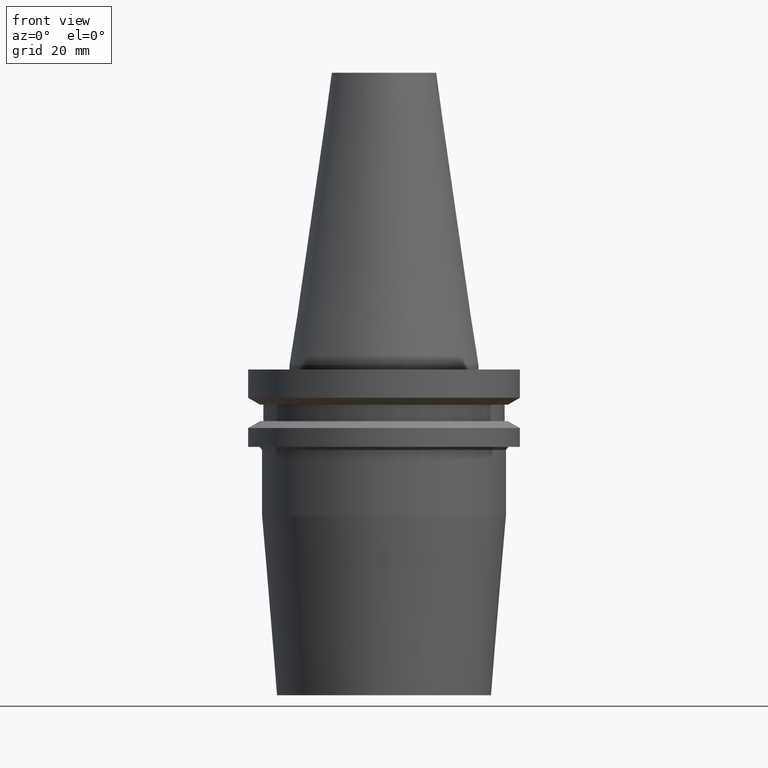
[diagram: clean part render]
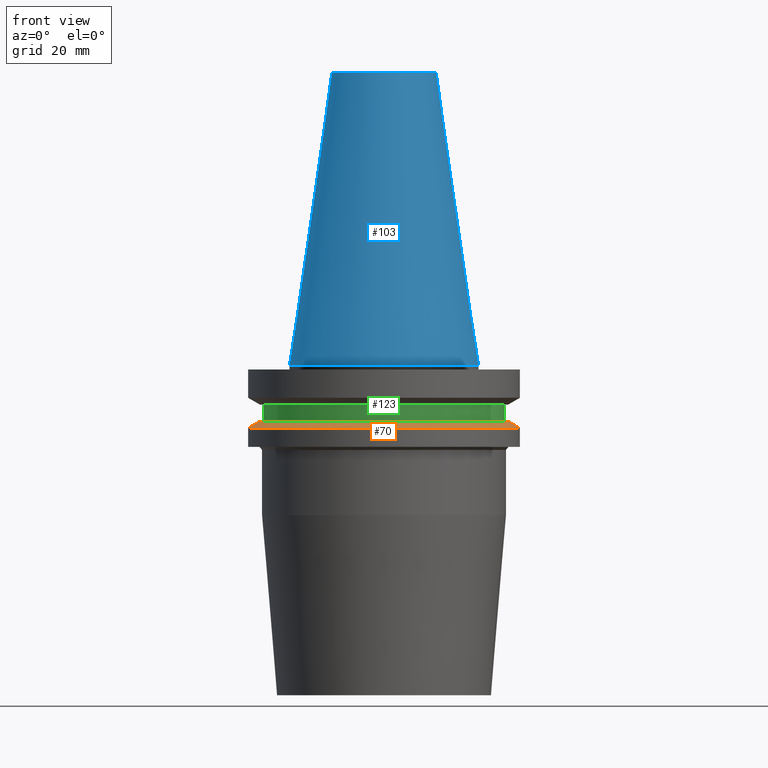
[diagram: same view with three faces highlighted in distinct colors, each labeled with its STEP entity id]
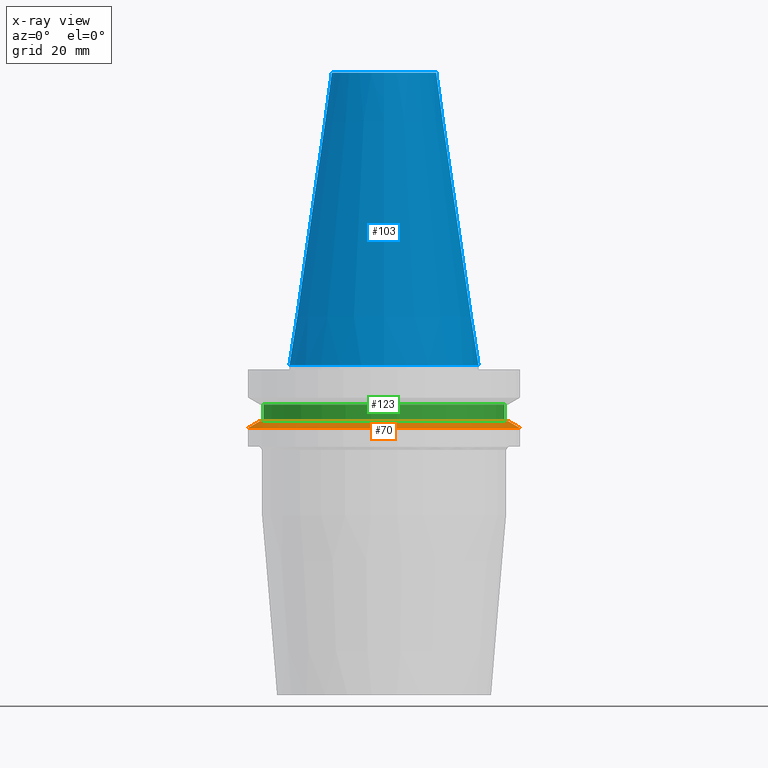
[diagram: x-ray of the same camera — body ghosted, the three highlighted faces saturated]
A machine part, front view with three faces highlighted in distinct colors.
The next image is the same camera in x-ray (body ghosted, the three faces saturated) — at least one of them is partly hidden behind the body in this view.
Their STEP definitions:

[orange] entity #70 — the highlighted conical surface has half-angle 60 deg.
#56=EDGE_CURVE('Unnamed[1]',#153,#153,#154,.T.);
#70=ADVANCED_FACE('Unnamed[1]',(#174,#175),#176,.T.);
#120=EDGE_CURVE('Unnamed[1]',#252,#252,#253,.T.);
#153=VERTEX_POINT('',#286);
#154=CIRCLE('',#287,28.9680375505324);
#174=FACE_BOUND('',#312,.T.);
#175=FACE_BOUND('',#313,.T.);
#176=CONICAL_SURFACE('',#314,30.3590187752662,1.0471975511966);
#252=VERTEX_POINT('',#409);
#253=CIRCLE('',#410,31.75);
#286=CARTESIAN_POINT('',(7.98469713044073E-016,28.9680375505324,-13.04));
#287=AXIS2_PLACEMENT_3D('',#442,#443,#444);
#312=EDGE_LOOP('',(#466));
#313=EDGE_LOOP('',(#467));
#314=AXIS2_PLACEMENT_3D('',#468,#469,#470);
#409=CARTESIAN_POINT('',(8.96819062676333E-016,31.75,-14.6461667690755));
#410=AXIS2_PLACEMENT_3D('',#552,#553,#554);
#442=CARTESIAN_POINT('',(7.98469713044073E-016,-1.8577383154557E-014,-13.04));
#443=DIRECTION('',(6.12323399573677E-017,-1.22696610407827E-016,-1.0));
#444=DIRECTION('',(2.68584782934724E-033,1.0,-1.22696610407827E-016));
#466=ORIENTED_EDGE('',*,*,#120,.F.);
#467=ORIENTED_EDGE('',*,*,#56,.T.);
#468=CARTESIAN_POINT('',(8.47644387860203E-016,-1.86759187637146E-014,-13.8430833845377));
#469=DIRECTION('',(6.12323399573677E-017,-1.22696610407864E-016,-1.0));
#470=DIRECTION('',(2.68584782933801E-033,1.0,-1.22696610407864E-016));
#552=CARTESIAN_POINT('',(8.96819062676333E-016,-1.87744543728722E-014,-14.6461667690755));
#553=DIRECTION('',(6.12323399573677E-017,-1.22696610407796E-016,-1.0));
#554=DIRECTION('',(2.68584782933523E-033,1.0,-1.22696610407796E-016));

[blue] entity #103 — the highlighted conical surface has half-angle 8.297 deg.
#100=EDGE_CURVE('Unnamed[1]',#220,#220,#221,.T.);
#103=ADVANCED_FACE('Unnamed[1]',(#224,#225),#226,.T.);
#112=EDGE_CURVE('Unnamed[1]',#239,#239,#240,.T.);
#220=VERTEX_POINT('',#369);
#221=CIRCLE('',#370,22.225);
#224=FACE_BOUND('',#374,.T.);
#225=FACE_BOUND('',#375,.T.);
#226=CONICAL_SURFACE('',#376,17.2484375007384,0.144812498217751);
#239=VERTEX_POINT('',#393);
#240=CIRCLE('',#394,12.2718750014768);
#369=CARTESIAN_POINT('',(-2.7394427528964E-031,22.225,2.72177751110499E-015));
#370=AXIS2_PLACEMENT_3D('',#516,#517,#518);
#374=EDGE_LOOP('',(#520));
#375=EDGE_LOOP('',(#521));
#376=AXIS2_PLACEMENT_3D('',#522,#523,#524);
#393=CARTESIAN_POINT('',(-4.17910720209034E-015,12.2718750014768,68.25));
#394=AXIS2_PLACEMENT_3D('',#537,#538,#539);
#516=CARTESIAN_POINT('',(2.09262850008981E-046,-1.69774193548387E-014,-2.07913422706855E-030));
#517=DIRECTION('',(6.12323399573676E-017,-1.22696610407854E-016,-1.0));
#518=DIRECTION('',(2.6858478293441E-033,1.0,-1.22696610407854E-016));
#520=ORIENTED_EDGE('',*,*,#100,.F.);
#521=ORIENTED_EDGE('',*,*,#112,.T.);
#522=CARTESIAN_POINT('',(-2.08955360104517E-015,-1.2790397524671E-014,34.125));
#523=DIRECTION('',(6.12323399573676E-017,-1.22696610407808E-016,-1.0));
#524=DIRECTION('',(2.68584782933486E-033,1.0,-1.22696610407808E-016));
#537=CARTESIAN_POINT('',(-4.17910720209034E-015,-8.60337569450326E-015,68.25));
#538=DIRECTION('',(6.12323399573677E-017,-1.22696610407856E-016,-1.0));
#539=DIRECTION('',(2.68584782934005E-033,1.0,-1.22696610407856E-016));

[green] entity #123 — the highlighted cylindrical surface (bore or boss wall) has radius 28.18 mm, axis along (0, -0, -1).
#72=EDGE_CURVE('Unnamed[1]',#178,#178,#179,.T.);
#105=EDGE_CURVE('Unnamed[1]',#228,#228,#229,.T.);
#123=ADVANCED_FACE('Unnamed[1]',(#256,#257),#258,.T.);
#178=VERTEX_POINT('',#317);
#179=CIRCLE('',#318,28.18);
#228=VERTEX_POINT('',#379);
#229=CIRCLE('',#380,28.18);
#256=FACE_BOUND('',#414,.T.);
#257=FACE_BOUND('',#415,.T.);
#258=CYLINDRICAL_SURFACE('',#416,28.18);
#317=CARTESIAN_POINT('',(5.63337527607784E-016,28.18,-9.20000000000003));
#318=AXIS2_PLACEMENT_3D('',#471,#472,#473);
#379=CARTESIAN_POINT('',(7.98469713044073E-016,28.18,-13.04));
#380=AXIS2_PLACEMENT_3D('',#525,#526,#527);
#414=EDGE_LOOP('',(#556));
#415=EDGE_LOOP('',(#557));
#416=AXIS2_PLACEMENT_3D('',#558,#559,#560);
#471=CARTESIAN_POINT('',(5.63337527607784E-016,-1.81062281705908E-014,-9.20000000000003));
#472=DIRECTION('',(6.12323399573676E-017,-1.22696610407825E-016,-1.0));
#473=DIRECTION('',(2.68584782934158E-033,1.0,-1.22696610407825E-016));
#525=CARTESIAN_POINT('',(7.98469713044073E-016,-1.8577383154557E-014,-13.04));
#526=DIRECTION('',(6.12323399573677E-017,-1.22696610407825E-016,-1.0));
#527=DIRECTION('',(2.68584782934158E-033,1.0,-1.22696610407825E-016));
#556=ORIENTED_EDGE('',*,*,#105,.F.);
#557=ORIENTED_EDGE('',*,*,#72,.T.);
#558=CARTESIAN_POINT('',(6.80903620325929E-016,-1.83418056625739E-014,-11.12));
#559=DIRECTION('',(6.12323399573677E-017,-1.22696610407825E-016,-1.0));
#560=DIRECTION('',(2.68584782934158E-033,1.0,-1.22696610407825E-016));